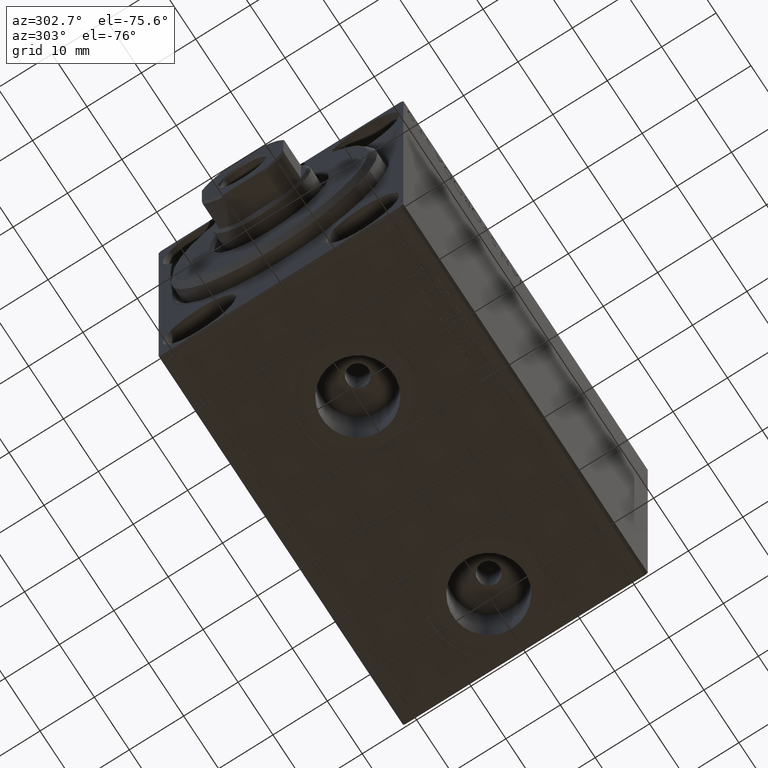
[diagram: clean part render]
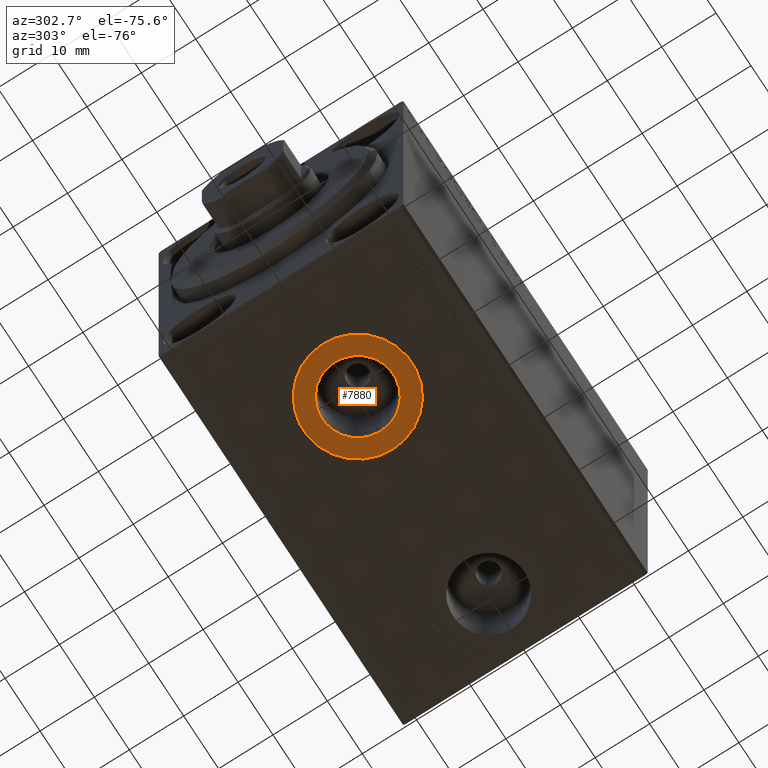
[diagram: same view with one face highlighted and labeled with its STEP entity id]
A machine part, auxiliary view. The second image highlights one B-rep face of the part: STEP entity #7880.
In plain terms, the highlighted planar face has unit normal (0, 0, -1).
Its self-contained STEP definition (entity closure, byte-faithful):
#308 = VERTEX_POINT ( 'NONE', #1520 ) ;
#1355 = CIRCLE ( 'NONE', #26233, 6.580000000000002736 ) ;
#1413 = CIRCLE ( 'NONE', #14245, 6.580000000000002736 ) ;
#1520 = CARTESIAN_POINT ( 'NONE',  ( 32.00000000000000000, -2.369701150249966375E-15, -32.40000000000000568 ) ) ;
#1564 = VERTEX_POINT ( 'NONE', #3516 ) ;
#1788 = DIRECTION ( 'NONE',  ( 0.000000000000000000, 0.000000000000000000, -1.000000000000000000 ) ) ;
#2657 = EDGE_LOOP ( 'NONE', ( #16164, #43248 ) ) ;
#3516 = CARTESIAN_POINT ( 'NONE',  ( 15.41999999999999638, -3.594347949397319039E-15, -32.40000000000000568 ) ) ;
#5637 = EDGE_CURVE ( 'NONE', #28766, #1564, #1355, .T. ) ;
#7178 = CIRCLE ( 'NONE', #37008, 10.00000000000000000 ) ;
#7655 = EDGE_CURVE ( 'NONE', #1564, #28766, #1413, .T. ) ;
#7880 = ADVANCED_FACE ( 'NONE', ( #25432, #28338 ), #41899, .T. ) ;
#8294 = CARTESIAN_POINT ( 'NONE',  ( 11.99999999999999822, -3.594347949397319039E-15, -32.40000000000000568 ) ) ;
#10462 = EDGE_CURVE ( 'NONE', #308, #39058, #7178, .T. ) ;
#11154 = DIRECTION ( 'NONE',  ( -1.000000000000000000, 0.000000000000000000, 0.000000000000000000 ) ) ;
#13941 = CARTESIAN_POINT ( 'NONE',  ( 28.58000000000000185, -2.788530355558360786E-15, -32.40000000000000568 ) ) ;
#14245 = AXIS2_PLACEMENT_3D ( 'NONE', #15907, #36139, #26584 ) ;
#14786 = CARTESIAN_POINT ( 'NONE',  ( 22.00000000000000000, -3.594347949397319039E-15, -32.40000000000000568 ) ) ;
#15907 = CARTESIAN_POINT ( 'NONE',  ( 22.00000000000000000, -3.594347949397319039E-15, -32.40000000000000568 ) ) ;
#16014 = CARTESIAN_POINT ( 'NONE',  ( 22.00000000000000000, -3.594347949397319039E-15, -32.40000000000000568 ) ) ;
#16164 = ORIENTED_EDGE ( 'NONE', *, *, #7655, .F. ) ;
#21675 = DIRECTION ( 'NONE',  ( -1.000000000000000000, 0.000000000000000000, 0.000000000000000000 ) ) ;
#22923 = DIRECTION ( 'NONE',  ( -1.000000000000000000, 0.000000000000000000, 0.000000000000000000 ) ) ;
#22944 = CIRCLE ( 'NONE', #43530, 10.00000000000000000 ) ;
#23429 = AXIS2_PLACEMENT_3D ( 'NONE', #38977, #24555, #38547 ) ;
#24555 = DIRECTION ( 'NONE',  ( 0.000000000000000000, 0.000000000000000000, -1.000000000000000000 ) ) ;
#25432 = FACE_BOUND ( 'NONE', #2657, .T. ) ;
#26233 = AXIS2_PLACEMENT_3D ( 'NONE', #14786, #41489, #21675 ) ;
#26584 = DIRECTION ( 'NONE',  ( -1.000000000000000000, 0.000000000000000000, 0.000000000000000000 ) ) ;
#28338 = FACE_OUTER_BOUND ( 'NONE', #36229, .T. ) ;
#28766 = VERTEX_POINT ( 'NONE', #13941 ) ;
#36023 = ORIENTED_EDGE ( 'NONE', *, *, #10462, .T. ) ;
#36139 = DIRECTION ( 'NONE',  ( 0.000000000000000000, 0.000000000000000000, -1.000000000000000000 ) ) ;
#36229 = EDGE_LOOP ( 'NONE', ( #40563, #36023 ) ) ;
#37008 = AXIS2_PLACEMENT_3D ( 'NONE', #16014, #42928, #22923 ) ;
#38278 = CARTESIAN_POINT ( 'NONE',  ( 22.00000000000000000, -3.594347949397319039E-15, -32.40000000000000568 ) ) ;
#38547 = DIRECTION ( 'NONE',  ( -1.000000000000000000, 0.000000000000000000, -0.000000000000000000 ) ) ;
#38977 = CARTESIAN_POINT ( 'NONE',  ( 0.000000000000000000, 0.000000000000000000, -32.40000000000000568 ) ) ;
#39058 = VERTEX_POINT ( 'NONE', #8294 ) ;
#40563 = ORIENTED_EDGE ( 'NONE', *, *, #41756, .T. ) ;
#41489 = DIRECTION ( 'NONE',  ( 0.000000000000000000, 0.000000000000000000, -1.000000000000000000 ) ) ;
#41756 = EDGE_CURVE ( 'NONE', #39058, #308, #22944, .T. ) ;
#41899 = PLANE ( 'NONE',  #23429 ) ;
#42928 = DIRECTION ( 'NONE',  ( 0.000000000000000000, 0.000000000000000000, -1.000000000000000000 ) ) ;
#43248 = ORIENTED_EDGE ( 'NONE', *, *, #5637, .F. ) ;
#43530 = AXIS2_PLACEMENT_3D ( 'NONE', #38278, #1788, #11154 ) ;